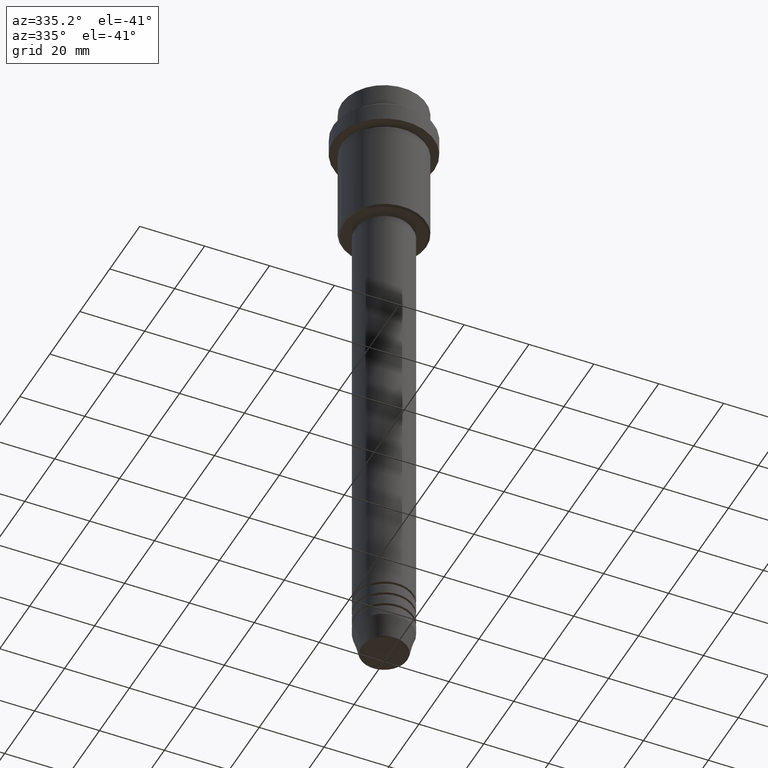
[diagram: clean part render]
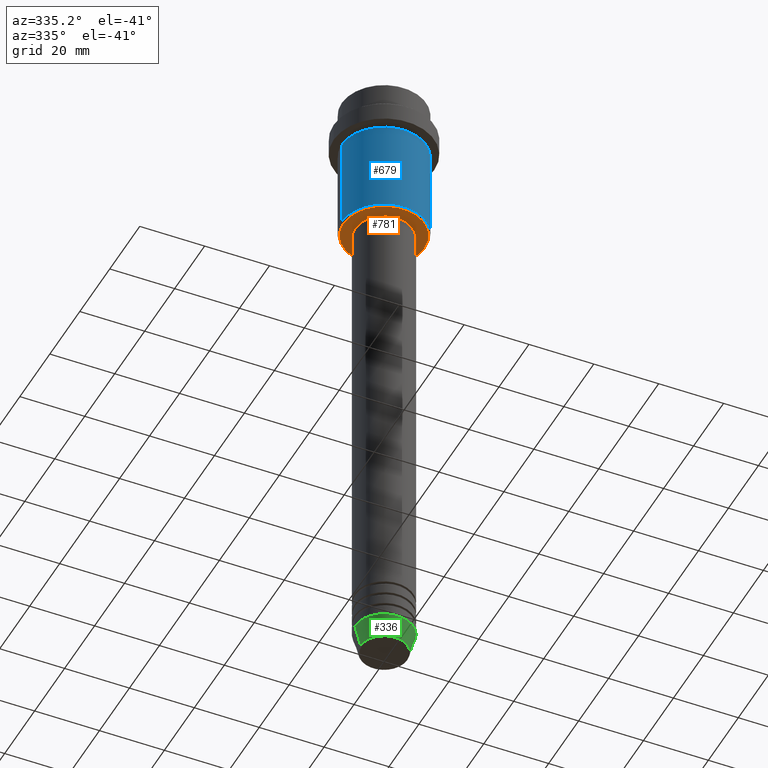
[diagram: same view with three faces highlighted in distinct colors, each labeled with its STEP entity id]
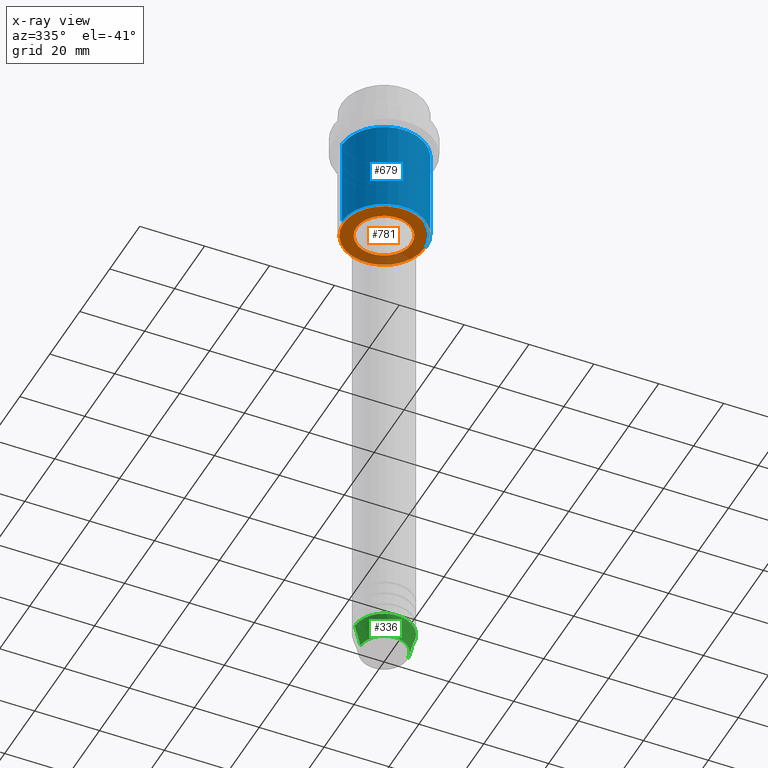
[diagram: x-ray of the same camera — body ghosted, the three highlighted faces saturated]
A machine part, auxiliary view with three faces highlighted in distinct colors.
The next image is the same camera in x-ray (body ghosted, the three faces saturated) — at least one of them is partly hidden behind the body in this view.
Their STEP definitions:

[orange] entity #781 — the highlighted planar face has unit normal (0, 0, -1).
#2 = DIRECTION ( 'NONE',  ( -0.000000000000000000, -0.000000000000000000, 1.000000000000000000 ) ) ;
#4 = EDGE_CURVE ( 'NONE', #888, #477, #663, .T. ) ;
#6 = DIRECTION ( 'NONE',  ( 1.000000000000000000, 0.000000000000000000, 0.000000000000000000 ) ) ;
#14 = DIRECTION ( 'NONE',  ( -0.000000000000000000, -0.000000000000000000, 1.000000000000000000 ) ) ;
#85 = CARTESIAN_POINT ( 'NONE',  ( 8.499999999999994671, 0.000000000000000000, -45.00000000000002132 ) ) ;
#98 = AXIS2_PLACEMENT_3D ( 'NONE', #685, #362, #681 ) ;
#122 = ORIENTED_EDGE ( 'NONE', *, *, #4, .T. ) ;
#123 = PLANE ( 'NONE',  #98 ) ;
#125 = AXIS2_PLACEMENT_3D ( 'NONE', #1227, #14, #6 ) ;
#139 = EDGE_LOOP ( 'NONE', ( #464, #772 ) ) ;
#204 = DIRECTION ( 'NONE',  ( -1.000000000000000000, 0.000000000000000000, 0.000000000000000000 ) ) ;
#241 = AXIS2_PLACEMENT_3D ( 'NONE', #635, #2, #427 ) ;
#322 = CARTESIAN_POINT ( 'NONE',  ( 0.000000000000000000, 0.000000000000000000, -45.00000000000002132 ) ) ;
#345 = CARTESIAN_POINT ( 'NONE',  ( -8.499999999999994671, 1.040949779275249745E-15, -45.00000000000002132 ) ) ;
#362 = DIRECTION ( 'NONE',  ( 0.000000000000000000, 0.000000000000000000, -1.000000000000000000 ) ) ;
#423 = DIRECTION ( 'NONE',  ( 0.000000000000000000, 0.000000000000000000, -1.000000000000000000 ) ) ;
#427 = DIRECTION ( 'NONE',  ( 1.000000000000000000, 0.000000000000000000, 0.000000000000000000 ) ) ;
#428 = CARTESIAN_POINT ( 'NONE',  ( 0.000000000000000000, 0.000000000000000000, -45.00000000000002132 ) ) ;
#435 = AXIS2_PLACEMENT_3D ( 'NONE', #428, #751, #204 ) ;
#443 = EDGE_CURVE ( 'NONE', #477, #888, #1063, .T. ) ;
#464 = ORIENTED_EDGE ( 'NONE', *, *, #1264, .T. ) ;
#477 = VERTEX_POINT ( 'NONE', #716 ) ;
#526 = AXIS2_PLACEMENT_3D ( 'NONE', #322, #423, #658 ) ;
#635 = CARTESIAN_POINT ( 'NONE',  ( 0.000000000000000000, 0.000000000000000000, -45.00000000000002132 ) ) ;
#658 = DIRECTION ( 'NONE',  ( -1.000000000000000000, 0.000000000000000000, 0.000000000000000000 ) ) ;
#663 = CIRCLE ( 'NONE', #526, 12.50000000000001066 ) ;
#669 = VERTEX_POINT ( 'NONE', #85 ) ;
#681 = DIRECTION ( 'NONE',  ( -1.000000000000000000, 0.000000000000000000, -0.000000000000000000 ) ) ;
#685 = CARTESIAN_POINT ( 'NONE',  ( 0.000000000000000000, 13.00000000000000000, -45.00000000000002132 ) ) ;
#716 = CARTESIAN_POINT ( 'NONE',  ( 12.50000000000001066, 0.000000000000000000, -45.00000000000002132 ) ) ;
#722 = EDGE_CURVE ( 'NONE', #1254, #669, #1344, .T. ) ;
#751 = DIRECTION ( 'NONE',  ( 0.000000000000000000, 0.000000000000000000, -1.000000000000000000 ) ) ;
#772 = ORIENTED_EDGE ( 'NONE', *, *, #722, .T. ) ;
#781 = ADVANCED_FACE ( 'NONE', ( #975, #1412 ), #123, .T. ) ;
#865 = CIRCLE ( 'NONE', #125, 8.499999999999994671 ) ;
#888 = VERTEX_POINT ( 'NONE', #1231 ) ;
#895 = ORIENTED_EDGE ( 'NONE', *, *, #443, .T. ) ;
#975 = FACE_OUTER_BOUND ( 'NONE', #1026, .T. ) ;
#1026 = EDGE_LOOP ( 'NONE', ( #895, #122 ) ) ;
#1063 = CIRCLE ( 'NONE', #435, 12.50000000000001066 ) ;
#1227 = CARTESIAN_POINT ( 'NONE',  ( 0.000000000000000000, 0.000000000000000000, -45.00000000000002132 ) ) ;
#1231 = CARTESIAN_POINT ( 'NONE',  ( -12.50000000000001066, 1.561424668912876097E-15, -45.00000000000002132 ) ) ;
#1254 = VERTEX_POINT ( 'NONE', #345 ) ;
#1264 = EDGE_CURVE ( 'NONE', #669, #1254, #865, .T. ) ;
#1344 = CIRCLE ( 'NONE', #241, 8.499999999999994671 ) ;
#1412 = FACE_BOUND ( 'NONE', #139, .T. ) ;

[blue] entity #679 — the highlighted cylindrical surface (partial cylindrical patch) has radius 13 mm, axis along (-0, -0, 1).
#35 = VERTEX_POINT ( 'NONE', #377 ) ;
#223 = CARTESIAN_POINT ( 'NONE',  ( -13.00000000000000000, 1.592040838891559095E-15, 0.000000000000000000 ) ) ;
#287 = CIRCLE ( 'NONE', #1212, 13.00000000000000000 ) ;
#375 = CARTESIAN_POINT ( 'NONE',  ( -13.00000000000000000, 1.592040838891559095E-15, -44.50000000000004974 ) ) ;
#377 = CARTESIAN_POINT ( 'NONE',  ( 13.00000000000000000, 0.000000000000000000, -16.00000000000000000 ) ) ;
#419 = CARTESIAN_POINT ( 'NONE',  ( 13.00000000000000000, 0.000000000000000000, -44.50000000000004974 ) ) ;
#438 = ORIENTED_EDGE ( 'NONE', *, *, #1395, .F. ) ;
#459 = LINE ( 'NONE', #1108, #813 ) ;
#508 = VECTOR ( 'NONE', #1099, 1000.000000000000000 ) ;
#537 = DIRECTION ( 'NONE',  ( 1.000000000000000000, 0.000000000000000000, 0.000000000000000000 ) ) ;
#561 = DIRECTION ( 'NONE',  ( -0.000000000000000000, -0.000000000000000000, 1.000000000000000000 ) ) ;
#567 = VERTEX_POINT ( 'NONE', #375 ) ;
#639 = DIRECTION ( 'NONE',  ( 1.000000000000000000, 0.000000000000000000, 0.000000000000000000 ) ) ;
#650 = FACE_OUTER_BOUND ( 'NONE', #890, .T. ) ;
#679 = ADVANCED_FACE ( 'NONE', ( #650 ), #968, .T. ) ;
#683 = DIRECTION ( 'NONE',  ( -0.000000000000000000, -0.000000000000000000, 1.000000000000000000 ) ) ;
#749 = CARTESIAN_POINT ( 'NONE',  ( 0.000000000000000000, 0.000000000000000000, -16.00000000000000000 ) ) ;
#750 = DIRECTION ( 'NONE',  ( -0.000000000000000000, -0.000000000000000000, 1.000000000000000000 ) ) ;
#766 = AXIS2_PLACEMENT_3D ( 'NONE', #869, #750, #537 ) ;
#774 = CARTESIAN_POINT ( 'NONE',  ( -13.00000000000000000, 1.592040838891559095E-15, -16.00000000000000000 ) ) ;
#790 = EDGE_CURVE ( 'NONE', #1407, #35, #459, .T. ) ;
#800 = CARTESIAN_POINT ( 'NONE',  ( 0.000000000000000000, 0.000000000000000000, -44.50000000000004974 ) ) ;
#805 = ORIENTED_EDGE ( 'NONE', *, *, #1234, .F. ) ;
#813 = VECTOR ( 'NONE', #561, 1000.000000000000000 ) ;
#869 = CARTESIAN_POINT ( 'NONE',  ( 0.000000000000000000, 0.000000000000000000, 0.000000000000000000 ) ) ;
#887 = LINE ( 'NONE', #223, #508 ) ;
#890 = EDGE_LOOP ( 'NONE', ( #805, #1235, #989, #438 ) ) ;
#927 = VERTEX_POINT ( 'NONE', #774 ) ;
#968 = CYLINDRICAL_SURFACE ( 'NONE', #766, 13.00000000000000000 ) ;
#985 = DIRECTION ( 'NONE',  ( -0.000000000000000000, -0.000000000000000000, 1.000000000000000000 ) ) ;
#989 = ORIENTED_EDGE ( 'NONE', *, *, #790, .T. ) ;
#1099 = DIRECTION ( 'NONE',  ( -0.000000000000000000, -0.000000000000000000, 1.000000000000000000 ) ) ;
#1108 = CARTESIAN_POINT ( 'NONE',  ( 13.00000000000000000, 0.000000000000000000, 0.000000000000000000 ) ) ;
#1138 = AXIS2_PLACEMENT_3D ( 'NONE', #749, #985, #639 ) ;
#1212 = AXIS2_PLACEMENT_3D ( 'NONE', #800, #683, #1240 ) ;
#1234 = EDGE_CURVE ( 'NONE', #567, #927, #887, .T. ) ;
#1235 = ORIENTED_EDGE ( 'NONE', *, *, #1359, .T. ) ;
#1240 = DIRECTION ( 'NONE',  ( -1.000000000000000000, 0.000000000000000000, 0.000000000000000000 ) ) ;
#1277 = CIRCLE ( 'NONE', #1138, 13.00000000000000000 ) ;
#1359 = EDGE_CURVE ( 'NONE', #567, #1407, #287, .T. ) ;
#1395 = EDGE_CURVE ( 'NONE', #927, #35, #1277, .T. ) ;
#1407 = VERTEX_POINT ( 'NONE', #419 ) ;

[green] entity #336 — the highlighted conical surface has half-angle 15 deg.
#3 = CARTESIAN_POINT ( 'NONE',  ( 9.000000000000000000, 0.000000000000000000, -193.0000000000000000 ) ) ;
#13 = CONICAL_SURFACE ( 'NONE', #1405, 9.000000000000000000, 0.2617993877991500740 ) ;
#110 = DIRECTION ( 'NONE',  ( 1.000000000000000000, 0.000000000000000000, 0.000000000000000000 ) ) ;
#131 = ORIENTED_EDGE ( 'NONE', *, *, #358, .T. ) ;
#173 = VERTEX_POINT ( 'NONE', #934 ) ;
#207 = CARTESIAN_POINT ( 'NONE',  ( -9.000000000000000000, 1.102182119232617714E-15, -193.0000000000000000 ) ) ;
#225 = CARTESIAN_POINT ( 'NONE',  ( 9.000000000000000000, 0.000000000000000000, -193.0000000000000000 ) ) ;
#231 = EDGE_LOOP ( 'NONE', ( #617, #249, #131, #338 ) ) ;
#236 = EDGE_CURVE ( 'NONE', #173, #1228, #882, .T. ) ;
#249 = ORIENTED_EDGE ( 'NONE', *, *, #236, .T. ) ;
#297 = EDGE_CURVE ( 'NONE', #1146, #848, #736, .T. ) ;
#336 = ADVANCED_FACE ( 'NONE', ( #1103 ), #13, .T. ) ;
#337 = DIRECTION ( 'NONE',  ( -0.000000000000000000, -0.000000000000000000, 1.000000000000000000 ) ) ;
#338 = ORIENTED_EDGE ( 'NONE', *, *, #297, .F. ) ;
#358 = EDGE_CURVE ( 'NONE', #1228, #848, #1414, .T. ) ;
#407 = CARTESIAN_POINT ( 'NONE',  ( 0.000000000000000000, 0.000000000000000000, -199.6294095225512990 ) ) ;
#481 = AXIS2_PLACEMENT_3D ( 'NONE', #407, #854, #962 ) ;
#521 = DIRECTION ( 'NONE',  ( -0.000000000000000000, -0.000000000000000000, 1.000000000000000000 ) ) ;
#591 = EDGE_CURVE ( 'NONE', #173, #1146, #837, .T. ) ;
#617 = ORIENTED_EDGE ( 'NONE', *, *, #591, .F. ) ;
#632 = DIRECTION ( 'NONE',  ( 1.000000000000000000, 0.000000000000000000, 0.000000000000000000 ) ) ;
#692 = VECTOR ( 'NONE', #1278, 1000.000000000000000 ) ;
#736 = CIRCLE ( 'NONE', #922, 9.000000000000000000 ) ;
#837 = LINE ( 'NONE', #1036, #692 ) ;
#848 = VERTEX_POINT ( 'NONE', #225 ) ;
#854 = DIRECTION ( 'NONE',  ( -0.000000000000000000, -0.000000000000000000, 1.000000000000000000 ) ) ;
#882 = CIRCLE ( 'NONE', #481, 7.223655072137188604 ) ;
#904 = VECTOR ( 'NONE', #1002, 1000.000000000000000 ) ;
#922 = AXIS2_PLACEMENT_3D ( 'NONE', #1055, #521, #632 ) ;
#934 = CARTESIAN_POINT ( 'NONE',  ( -7.223655072137189492, 9.934123627281765110E-16, -199.6294095225512990 ) ) ;
#962 = DIRECTION ( 'NONE',  ( 1.000000000000000000, 0.000000000000000000, 0.000000000000000000 ) ) ;
#1002 = DIRECTION ( 'NONE',  ( 0.2588190451025213501, 0.000000000000000000, 0.9659258262890680902 ) ) ;
#1036 = CARTESIAN_POINT ( 'NONE',  ( -9.000000000000000000, 1.102182119232617714E-15, -193.0000000000000000 ) ) ;
#1055 = CARTESIAN_POINT ( 'NONE',  ( 0.000000000000000000, 0.000000000000000000, -193.0000000000000000 ) ) ;
#1103 = FACE_OUTER_BOUND ( 'NONE', #231, .T. ) ;
#1146 = VERTEX_POINT ( 'NONE', #207 ) ;
#1213 = CARTESIAN_POINT ( 'NONE',  ( 0.000000000000000000, 0.000000000000000000, -193.0000000000000000 ) ) ;
#1228 = VERTEX_POINT ( 'NONE', #1236 ) ;
#1236 = CARTESIAN_POINT ( 'NONE',  ( 7.223655072137188604, 0.000000000000000000, -199.6294095225512990 ) ) ;
#1278 = DIRECTION ( 'NONE',  ( -0.2588190451025213501, 3.169619151431772337E-17, 0.9659258262890680902 ) ) ;
#1405 = AXIS2_PLACEMENT_3D ( 'NONE', #1213, #337, #110 ) ;
#1414 = LINE ( 'NONE', #3, #904 ) ;